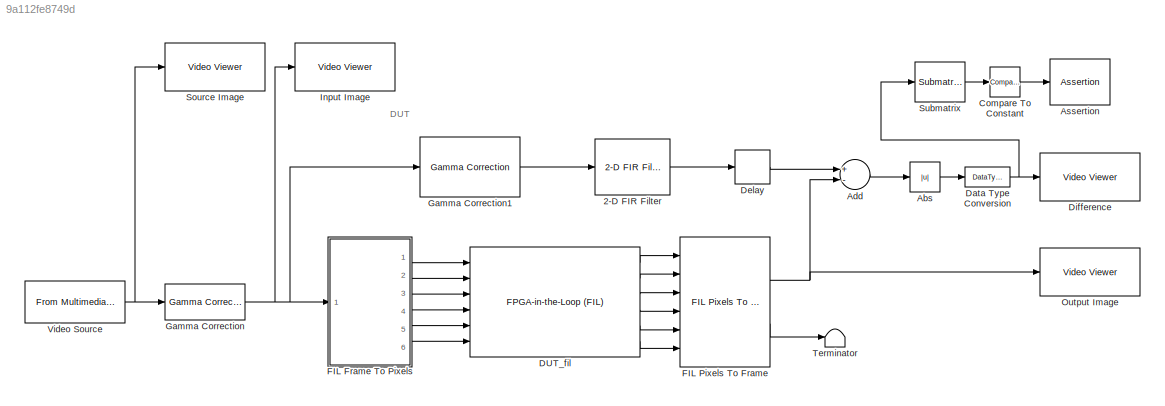
MODEL slx_9a112fe8749d
KIND model
CONFIG AbsTol = auto
CONFIG FixedStep = auto
CONFIG MaxStep = auto
CONFIG MinStep = auto
CONFIG PreLoadFcn = H = fspecial('unsharp')
CONFIG RelTol = 1e-3
CONFIG SampleTimeConstraint = Unconstrained
CONFIG Solver = ode45
CONFIG SolverMode = Auto
CONFIG SolverName = ode45
CONFIG StartTime = 0.0
CONFIG StopTime = 10.0
BLOCK [Reference] 2-D FIR Filter  REF=visionfilter/2-D FIR Filter
  Ports = [1, 1]
  SourceBlock = visionfilter/2-D FIR Filter
  SourceType = 2-D FIR Filter
BLOCK [Abs] Abs
  SaturateOnIntegerOverflow = off
BLOCK [Sum] Add
  InputSameDT = off
  Inputs = +-
  OutDataTypeStr = int16
  Ports = [2, 1]
  SaturateOnIntegerOverflow = off
BLOCK [Assertion] Assertion
BLOCK [Reference] Compare To Constant  REF=simulink/Logic and Bit
Operations/Compare
To Constant
  Ports = [1, 1]
  SourceBlock = simulink/Logic and Bit\nOperations/Compare\nTo Constant
  SourceType = Compare To Constant
BLOCK [Reference] DUT_fil  REF=fillib/FPGA-in-the-Loop (FIL)
  AttributesFormatString = IP Address: 192.168.1.10
  Ports = [6, 6]
  SourceBlock = fillib/FPGA-in-the-Loop (FIL)
  SourceType = FPGA-in-the-Loop (FIL)
  UserDataPersistent = on
BLOCK [DataTypeConversion] Data Type Conversion
  OutDataTypeStr = uint8
  RndMeth = Floor
  SaturateOnIntegerOverflow = off
BLOCK [Delay] Delay
  DelayLength = 1
  InputPortMap = u0
  InputProcessing = Inherited
  Ports = [1, 1]
BLOCK [Reference] Difference  REF=visionsinks/Video Viewer
  Ports = [1]
  SourceBlock = visionsinks/Video Viewer
  SourceType = Video Viewer
  UserDataPersistent = on
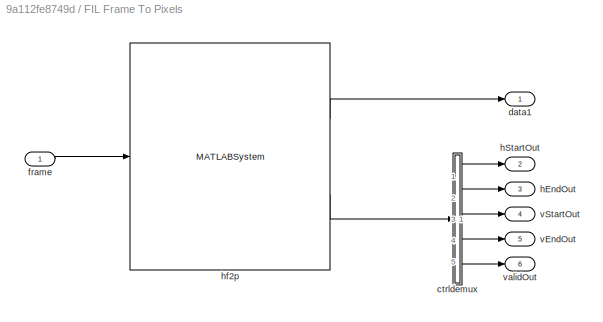
BLOCK [SubSystem] FIL Frame To Pixels
  Ports = [1, 6]
  RequestExecContextInheritance = off
  Variant = off
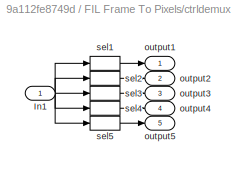
BLOCK [SubSystem] FIL Frame To Pixels/ctrldemux
  Ports = [1, 5]
  RequestExecContextInheritance = off
  Variant = off
BLOCK [Inport] FIL Frame To Pixels/ctrldemux/In1
  IconDisplay = Port number
BLOCK [Outport] FIL Frame To Pixels/ctrldemux/output1
  IconDisplay = Port number
BLOCK [Outport] FIL Frame To Pixels/ctrldemux/output2
  IconDisplay = Port number
  Port = 2
BLOCK [Outport] FIL Frame To Pixels/ctrldemux/output3
  IconDisplay = Port number
  Port = 3
BLOCK [Outport] FIL Frame To Pixels/ctrldemux/output4
  IconDisplay = Port number
  Port = 4
BLOCK [Outport] FIL Frame To Pixels/ctrldemux/output5
  IconDisplay = Port number
  Port = 5
BLOCK [Selector] FIL Frame To Pixels/ctrldemux/sel1
  IndexOptions = Select all,Index vector (dialog)
  Indices = [1 5],1
  InputPortWidth = 3
  NumberOfDimensions = 2
  OutputSizes = 1
  Ports = [1, 1]
BLOCK [Selector] FIL Frame To Pixels/ctrldemux/sel2
  IndexOptions = Select all,Index vector (dialog)
  Indices = [1 5],2
  InputPortWidth = 3
  NumberOfDimensions = 2
  OutputSizes = 1
  Ports = [1, 1]
BLOCK [Selector] FIL Frame To Pixels/ctrldemux/sel3
  IndexOptions = Select all,Index vector (dialog)
  Indices = [1 5],3
  InputPortWidth = 3
  NumberOfDimensions = 2
  OutputSizes = 1
  Ports = [1, 1]
BLOCK [Selector] FIL Frame To Pixels/ctrldemux/sel4
  IndexOptions = Select all,Index vector (dialog)
  Indices = [1 5],4
  InputPortWidth = 3
  NumberOfDimensions = 2
  OutputSizes = 1
  Ports = [1, 1]
BLOCK [Selector] FIL Frame To Pixels/ctrldemux/sel5
  IndexOptions = Select all,Index vector (dialog)
  Indices = [1 5],5
  InputPortWidth = 3
  NumberOfDimensions = 2
  OutputSizes = 1
  Ports = [1, 1]
BLOCK [Outport] FIL Frame To Pixels/data1
  IconDisplay = Port number
BLOCK [Inport] FIL Frame To Pixels/frame
  IconDisplay = Port number
BLOCK [Outport] FIL Frame To Pixels/hEndOut
  IconDisplay = Port number
  Port = 3
BLOCK [Outport] FIL Frame To Pixels/hStartOut
  IconDisplay = Port number
  Port = 2
BLOCK [MATLABSystem] FIL Frame To Pixels/hf2p
  ActivePixelsPerLine = ActivePixelsPerLine
  ActiveVideoLines = ActiveVideoLines
  FrontPorch = FrontPorch
  MaskDisplay = disp('FrameToFrameOfPixels');\nport_label('input',1,'matrix');\nport_label('output',1,'pixel');\nport_label('output',2,'ctrl');
  MaskType = visionhdl.internal.FrameToFrameOfPixels
  NumComponents = 1
  Ports = [1, 2]
  SimulateUsing = Code generation
  StartingActiveLine = StartingActiveLine
  System = visionhdl.internal.FrameToFrameOfPixels
  TotalPixelsPerLine = TotalPixelsPerLine
  TotalVideoLines = TotalVideoLines
  VideoFormat = 240p
BLOCK [Outport] FIL Frame To Pixels/vEndOut
  IconDisplay = Port number
  Port = 5
BLOCK [Outport] FIL Frame To Pixels/vStartOut
  IconDisplay = Port number
  Port = 4
BLOCK [Outport] FIL Frame To Pixels/validOut
  IconDisplay = Port number
  Port = 6
BLOCK [Reference] FIL Pixels To Frame  REF=visionhdlio/FIL Pixels To Frame
  Ports = [6, 2]
  SourceBlock = visionhdlio/FIL Pixels To Frame
  SourceType = FIL Pixels To Frame
BLOCK [Reference] Gamma Correction  REF=visionconversions/Gamma Correction
  Ports = [1, 1]
  SourceBlock = visionconversions/Gamma Correction
  SourceType = Gamma Correction
BLOCK [Reference] Gamma Correction1  REF=visionconversions/Gamma Correction
  Ports = [1, 1]
  SourceBlock = visionconversions/Gamma Correction
  SourceType = Gamma Correction
BLOCK [Reference] Input Image  REF=visionsinks/Video Viewer
  Ports = [1]
  SourceBlock = visionsinks/Video Viewer
  SourceType = Video Viewer
  UserDataPersistent = on
BLOCK [Reference] Output Image  REF=visionsinks/Video Viewer
  Ports = [1]
  SourceBlock = visionsinks/Video Viewer
  SourceType = Video Viewer
  UserDataPersistent = on
BLOCK [Reference] Source Image  REF=visionsinks/Video Viewer
  Ports = [1]
  SourceBlock = visionsinks/Video Viewer
  SourceType = Video Viewer
  UserDataPersistent = on
BLOCK [Reference] Submatrix  REF=dspmtrx3/Submatrix
  Ports = [1, 1]
  SourceBlock = dspmtrx3/Submatrix
  SourceType = Submatrix
BLOCK [Terminator] Terminator
BLOCK [Reference] Video Source  REF=dspvision/From Multimedia File
  Ports = [0, 1]
  SourceBlock = dspvision/From Multimedia File
  SourceType = From Multimedia File
ANNOTATION (root): DUT
LINE 2-D FIR Filter:1 -> Delay:1
LINE Abs:1 -> Data Type Conversion:1
LINE Add:1 -> Abs:1
LINE Compare To Constant:1 -> Assertion:1
LINE DUT_fil:1 -> FIL Pixels To Frame:1
LINE DUT_fil:2 -> FIL Pixels To Frame:2
LINE DUT_fil:3 -> FIL Pixels To Frame:3
LINE DUT_fil:4 -> FIL Pixels To Frame:4
LINE DUT_fil:5 -> FIL Pixels To Frame:5
LINE DUT_fil:6 -> FIL Pixels To Frame:6
NET Data Type Conversion:1 -> Difference:1, Submatrix:1
LINE Delay:1 -> Add:1
LINE FIL Frame To Pixels:1 -> DUT_fil:1
LINE FIL Frame To Pixels:2 -> DUT_fil:2
LINE FIL Frame To Pixels:3 -> DUT_fil:3
LINE FIL Frame To Pixels:4 -> DUT_fil:4
LINE FIL Frame To Pixels:5 -> DUT_fil:5
LINE FIL Frame To Pixels:6 -> DUT_fil:6
NET FIL Pixels To Frame:1 -> Add:2, Output Image:1
LINE FIL Pixels To Frame:2 -> Terminator:1
LINE Gamma Correction1:1 -> 2-D FIR Filter:1
NET Gamma Correction:1 -> FIL Frame To Pixels:1, Gamma Correction1:1, Input Image:1
LINE Submatrix:1 -> Compare To Constant:1
NET Video Source:1 -> Gamma Correction:1, Source Image:1
note: NET lines group one-source signal fan-out (src -> all destinations, sorted); 1:1 wires keep LINE
